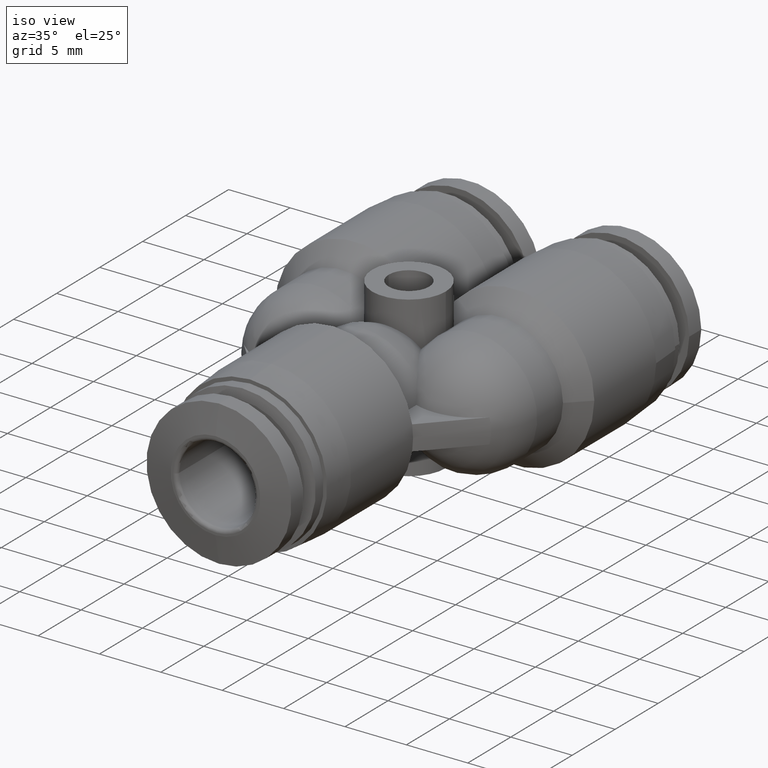
[diagram: clean part render]
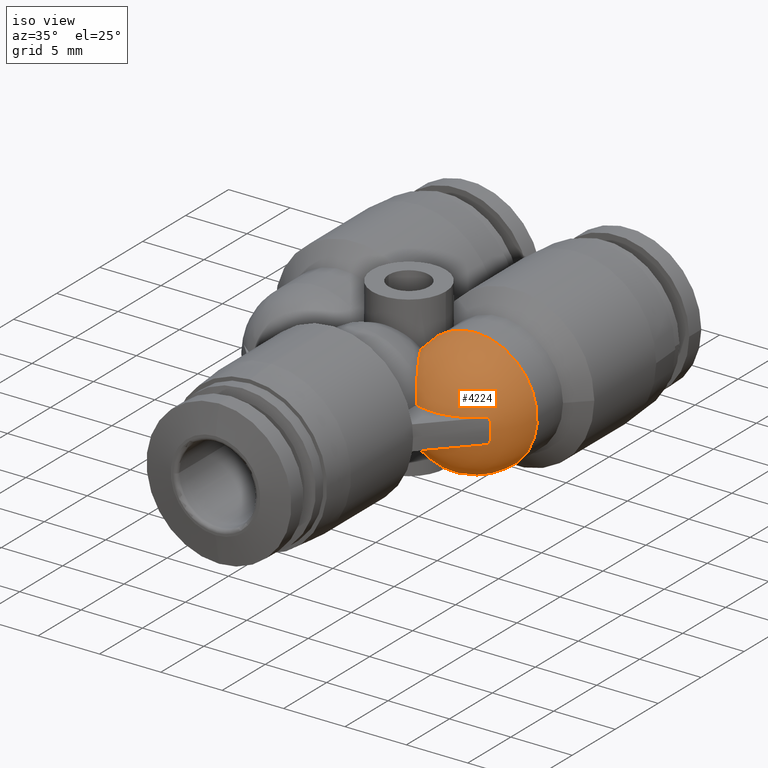
[diagram: same view with one face highlighted and labeled with its STEP entity id]
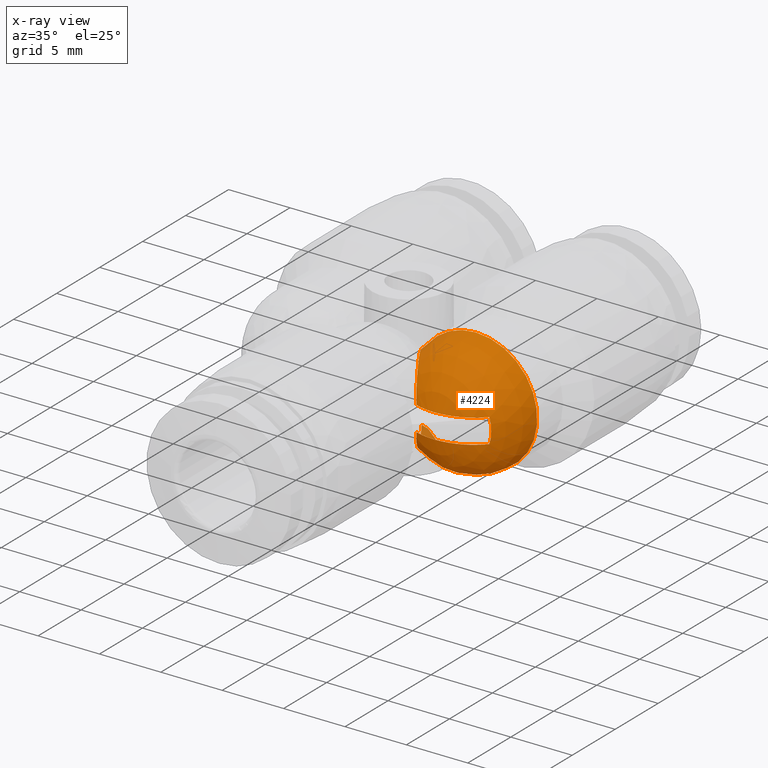
[diagram: x-ray of the same camera — body ghosted, the highlighted face saturated]
A machine part, iso view. The second image highlights one B-rep face of the part: STEP entity #4224.
The next image is the same camera in x-ray: the body ghosted, the highlighted face saturated — about 1% of this face is hidden behind the body in this view.
In plain terms, the highlighted spherical surface has radius 5 mm.
Its self-contained STEP definition (entity closure, byte-faithful):
#138 = B_SPLINE_CURVE_WITH_KNOTS ( 'NONE', 3,
 ( #1878, #4533, #1418, #2324 ),
 .UNSPECIFIED., .F., .F.,
 ( 4, 4 ),
 ( 6.640039522552162700E-012, 0.0005671401409244384000 ),
 .UNSPECIFIED. ) ;
#163 = CARTESIAN_POINT ( 'NONE',  ( 0.09257637847656685600, 0.5565752166759430100, -0.1089469649203462200 ) ) ;
#223 = CARTESIAN_POINT ( 'NONE',  ( 0.1472519663707816700, 0.4630511847516054500, 0.1245855146685866900 ) ) ;
#243 = EDGE_CURVE ( 'NONE', #4706, #4729, #2808, .T. ) ;
#245 = CARTESIAN_POINT ( 'NONE',  ( 0.09559180651172540000, 0.5514172476684338100, -0.1127909921439706900 ) ) ;
#276 = CARTESIAN_POINT ( 'NONE',  ( 0.3938228973749638400, 0.4360371049510830500, 0.03937007874015924200 ) ) ;
#296 = CARTESIAN_POINT ( 'NONE',  ( 0.3993319701483046800, 0.4360371542611297700, -5.582964880023018900E-018 ) ) ;
#484 = CIRCLE ( 'NONE', #2291, 0.1968503937007948200 ) ;
#606 = CARTESIAN_POINT ( 'NONE',  ( 0.1716838279831953400, 0.4212598425198296700, -0.09630545524130779100 ) ) ;
#622 = CARTESIAN_POINT ( 'NONE',  ( 0.2559055118111661600, 0.5708661417324755200, 0.1968503937007948200 ) ) ;
#662 = ORIENTED_EDGE ( 'NONE', *, *, #3062, .F. ) ;
#681 = CARTESIAN_POINT ( 'NONE',  ( 0.1296823272623577100, 0.4931045148054958300, 0.1296958778351818000 ) ) ;
#699 = CARTESIAN_POINT ( 'NONE',  ( 0.2559055118111661600, 0.5708661417324755200, -0.03937007874015820100 ) ) ;
#706 = EDGE_CURVE ( 'NONE', #4856, #4729, #3662, .T. ) ;
#729 = CARTESIAN_POINT ( 'NONE',  ( 0.3993319656034372000, 0.4360368798761134500, 0.01355875711738979300 ) ) ;
#743 = DIRECTION ( 'NONE',  ( 1.000000000000000000, -6.938893903906966100E-016, 0.0000000000000000000 ) ) ;
#896 = CARTESIAN_POINT ( 'NONE',  ( 0.1663527539163683600, 0.4303787850025674900, -0.1058091661241676300 ) ) ;
#1007 = DIRECTION ( 'NONE',  ( -0.0000000000000000000, 0.0000000000000000000, 1.000000000000000000 ) ) ;
#1088 = CARTESIAN_POINT ( 'NONE',  ( 0.1663527539163684500, 0.4303787850025675400, 0.1058091661241676400 ) ) ;
#1094 = CIRCLE ( 'NONE', #1379, 0.1928732080931733200 ) ;
#1120 = CARTESIAN_POINT ( 'NONE',  ( 0.1190560089530685300, 0.5112811119134949000, 0.1285340674648665900 ) ) ;
#1139 = DIRECTION ( 'NONE',  ( -1.000000000000000000, 0.0000000000000000000, 0.0000000000000000000 ) ) ;
#1170 = CARTESIAN_POINT ( 'NONE',  ( 0.2559055118111661600, 0.5708661417324755200, -4.739000847409359400E-032 ) ) ;
#1176 = EDGE_CURVE ( 'NONE', #4723, #4777, #1094, .T. ) ;
#1183 = CARTESIAN_POINT ( 'NONE',  ( 0.1928732080932837600, 0.3885833858607868300, 0.03937007874010163600 ) ) ;
#1379 = AXIS2_PLACEMENT_3D ( 'NONE', #3668, #1007, #4135 ) ;
#1400 = EDGE_CURVE ( 'NONE', #4706, #3212, #2287, .T. ) ;
#1418 = CARTESIAN_POINT ( 'NONE',  ( 0.09581629707265977600, 0.5606645978781912300, 0.1143405446046730500 ) ) ;
#1568 = ORIENTED_EDGE ( 'NONE', *, *, #5334, .T. ) ;
#1579 = CARTESIAN_POINT ( 'NONE',  ( 0.1086425977944975900, 0.5290935257373697900, 0.1239705782561892200 ) ) ;
#1626 = SPHERICAL_SURFACE ( 'NONE', #4203, 0.1968503937007948200 ) ;
#1637 = CARTESIAN_POINT ( 'NONE',  ( 0.1760733430999616400, 0.4137514613990382300, 0.08848026240722531300 ) ) ;
#1704 = DIRECTION ( 'NONE',  ( -6.938893903906966100E-016, -1.000000000000000000, 6.938893903906968100E-016 ) ) ;
#1715 = EDGE_CURVE ( 'NONE', #4780, #3197, #1774, .T. ) ;
#1739 = CIRCLE ( 'NONE', #1923, 0.1928732080931710700 ) ;
#1746 = AXIS2_PLACEMENT_3D ( 'NONE', #4579, #1904, #5040 ) ;
#1754 = CARTESIAN_POINT ( 'NONE',  ( 0.1190560089530685600, 0.5112811119134949000, -0.1285340674648664000 ) ) ;
#1774 = B_SPLINE_CURVE_WITH_KNOTS ( 'NONE', 3,
 ( #296, #5665, #2529, #3412 ),
 .UNSPECIFIED., .F., .F.,
 ( 4, 4 ),
 ( 0.0000000000000000000, 1.000000000000000000 ),
 .UNSPECIFIED. ) ;
#1814 = CARTESIAN_POINT ( 'NONE',  ( 0.09257637847656681500, 0.5565752166759430100, 0.1089469649203462400 ) ) ;
#1878 = CARTESIAN_POINT ( 'NONE',  ( 0.1022864649019111500, 0.5708661415384842500, 0.1230904786197818000 ) ) ;
#1904 = DIRECTION ( 'NONE',  ( 2.525689726806573300E-009, -1.000000000000000000, 3.469446953048826800E-016 ) ) ;
#1923 = AXIS2_PLACEMENT_3D ( 'NONE', #699, #3787, #1139 ) ;
#1951 = CARTESIAN_POINT ( 'NONE',  ( 0.1022864649019111500, 0.5708661415384842500, 0.1230904786197818000 ) ) ;
#1982 = ORIENTED_EDGE ( 'NONE', *, *, #706, .F. ) ;
#2019 = CARTESIAN_POINT ( 'NONE',  ( 0.09872948265587247500, 0.5460501700534439200, 0.1161006428139773800 ) ) ;
#2035 = FACE_OUTER_BOUND ( 'NONE', #3056, .T. ) ;
#2121 = CARTESIAN_POINT ( 'NONE',  ( 0.3938230066952848600, 0.4360372208301582800, -0.03937007907882612200 ) ) ;
#2200 = CARTESIAN_POINT ( 'NONE',  ( 0.1801998313415413600, 0.4072477773995517000, -0.07988603281599591900 ) ) ;
#2287 = B_SPLINE_CURVE_WITH_KNOTS ( 'NONE', 3,
 ( #3032, #4888, #2200, #5355, #2635, #5780 ),
 .UNSPECIFIED., .F., .F.,
 ( 4, 2, 4 ),
 ( 1.069355368659044600E-017, 0.0008795014551594330200, 0.001759002910318855200 ),
 .UNSPECIFIED. ) ;
#2291 = AXIS2_PLACEMENT_3D ( 'NONE', #4375, #1704, #4844 ) ;
#2324 = CARTESIAN_POINT ( 'NONE',  ( 0.09257637847656681500, 0.5565752166759430100, 0.1089469649203462400 ) ) ;
#2474 = CARTESIAN_POINT ( 'NONE',  ( 0.09257637847656681500, 0.5565752166759430100, 0.1089469649203462400 ) ) ;
#2529 = CARTESIAN_POINT ( 'NONE',  ( 0.3974216972241276800, 0.4360373280126550500, -0.02676386215532838100 ) ) ;
#2631 = EDGE_CURVE ( 'NONE', #5281, #4992, #138, .T. ) ;
#2635 = CARTESIAN_POINT ( 'NONE',  ( 0.1906190649064961600, 0.3917479620334189900, -0.05041307996973014300 ) ) ;
#2669 = EDGE_CURVE ( 'NONE', #4716, #5281, #3568, .T. ) ;
#2717 = ORIENTED_EDGE ( 'NONE', *, *, #5323, .F. ) ;
#2808 = B_SPLINE_CURVE_WITH_KNOTS ( 'NONE', 3,
 ( #4785, #896, #4924, #4727, #4719, #4708, #4687, #1754, #4664, #4621, #4601, #4559, #245, #4538 ),
 .UNSPECIFIED., .F., .F.,
 ( 4, 2, 2, 2, 2, 2, 4 ),
 ( 1.226634733346699500E-017, 0.001067358897917320400, 0.002134717795834628200, 0.002668397244793282300, 0.003202076693751936000, 0.003735756142710590100, 0.004269435591669244200 ),
 .UNSPECIFIED. ) ;
#2884 = CARTESIAN_POINT ( 'NONE',  ( 0.1603987516797021600, 0.4405632625126570900, 0.1133614872300359500 ) ) ;
#2939 = CARTESIAN_POINT ( 'NONE',  ( 0.3993319701483046800, 0.4360371542611297700, -5.582964880023018900E-018 ) ) ;
#2955 = CARTESIAN_POINT ( 'NONE',  ( 0.1906161031639835300, 0.3917521200034357900, 0.05042758948554646600 ) ) ;
#2983 = CARTESIAN_POINT ( 'NONE',  ( 0.09257637847656685600, 0.5565752166759430100, -0.1089469649203462200 ) ) ;
#2999 = CARTESIAN_POINT ( 'NONE',  ( 0.09581629711059232200, 0.5606645979260692600, -0.1143405446678204500 ) ) ;
#3032 = CARTESIAN_POINT ( 'NONE',  ( 0.1716838279831953400, 0.4212598425198296700, -0.09630545524130779100 ) ) ;
#3056 = EDGE_LOOP ( 'NONE', ( #4385, #3293, #1568, #4907, #5272, #1982, #5679, #5803, #3913, #2717, #662, #4103 ) ) ;
#3062 = EDGE_CURVE ( 'NONE', #4723, #4710, #5450, .T. ) ;
#3197 = VERTEX_POINT ( 'NONE', #2121 ) ;
#3212 = VERTEX_POINT ( 'NONE', #4328 ) ;
#3215 = B_SPLINE_CURVE_WITH_KNOTS ( 'NONE', 3,
 ( #4693, #1088, #2884, #223, #3331, #681, #3769, #1120, #4249, #1579, #4714, #2019, #5176, #2474 ),
 .UNSPECIFIED., .F., .F.,
 ( 4, 2, 2, 2, 2, 2, 4 ),
 ( 1.412628475557503000E-017, 0.001067358897917321900, 0.002134717795834629900, 0.002668397244793283600, 0.003202076693751937700, 0.003735756142710591800, 0.004269435591669245100 ),
 .UNSPECIFIED. ) ;
#3262 = CARTESIAN_POINT ( 'NONE',  ( 0.1716838279831954000, 0.4212598425198297300, 0.09630545524130773600 ) ) ;
#3293 = ORIENTED_EDGE ( 'NONE', *, *, #1715, .T. ) ;
#3331 = CARTESIAN_POINT ( 'NONE',  ( 0.1403647765715709500, 0.4748319041449947700, 0.1279775991353888600 ) ) ;
#3410 = DIRECTION ( 'NONE',  ( -6.938893903906966100E-016, -1.000000000000000000, -0.0000000000000000000 ) ) ;
#3412 = CARTESIAN_POINT ( 'NONE',  ( 0.3938230066952848600, 0.4360372208301582800, -0.03937007907882612200 ) ) ;
#3568 = CIRCLE ( 'NONE', #1746, 0.1968503937007946800 ) ;
#3662 = B_SPLINE_CURVE_WITH_KNOTS ( 'NONE', 3,
 ( #3881, #3794, #2999, #2983 ),
 .UNSPECIFIED., .F., .F.,
 ( 4, 4 ),
 ( 3.532037152466940600E-017, 0.0005671401409244325500 ),
 .UNSPECIFIED. ) ;
#3668 = CARTESIAN_POINT ( 'NONE',  ( 0.2559055118111661600, 0.5708661417324755200, 0.03937007874014709900 ) ) ;
#3769 = CARTESIAN_POINT ( 'NONE',  ( 0.1261044173790604200, 0.4992246238164005900, 0.1296855331369248500 ) ) ;
#3787 = DIRECTION ( 'NONE',  ( 0.0000000000000000000, -0.0000000000000000000, -1.000000000000000000 ) ) ;
#3794 = CARTESIAN_POINT ( 'NONE',  ( 0.09909759142223700800, 0.5653428506527743400, -0.1191107093537943100 ) ) ;
#3827 = CARTESIAN_POINT ( 'NONE',  ( 0.3993319701483046800, 0.4360371542611297700, -5.582964880023018900E-018 ) ) ;
#3881 = CARTESIAN_POINT ( 'NONE',  ( 0.1022864650139158600, 0.5708661417324820700, -0.1230904787595655200 ) ) ;
#3913 = ORIENTED_EDGE ( 'NONE', *, *, #2631, .T. ) ;
#3926 = CARTESIAN_POINT ( 'NONE',  ( 0.1022864650139158600, 0.5708661417324820700, -0.1230904787595655200 ) ) ;
#4103 = ORIENTED_EDGE ( 'NONE', *, *, #1176, .T. ) ;
#4135 = DIRECTION ( 'NONE',  ( -1.000000000000000000, 0.0000000000000000000, 0.0000000000000000000 ) ) ;
#4203 = AXIS2_PLACEMENT_3D ( 'NONE', #1170, #3410, #743 ) ;
#4221 = EDGE_CURVE ( 'NONE', #4777, #4780, #4530, .T. ) ;
#4224 = ADVANCED_FACE ( 'NONE', ( #2035 ), #1626, .T. ) ;
#4249 = CARTESIAN_POINT ( 'NONE',  ( 0.1155633151416633300, 0.5172554565908992200, 0.1273969538001540100 ) ) ;
#4309 = CARTESIAN_POINT ( 'NONE',  ( 0.1802867160491161400, 0.4071125140924000100, 0.07969042975348647500 ) ) ;
#4328 = CARTESIAN_POINT ( 'NONE',  ( 0.1928732080932786300, 0.3885833858608086500, -0.03937007874013190300 ) ) ;
#4375 = CARTESIAN_POINT ( 'NONE',  ( 0.2559055118111661600, 0.5708661417324755200, -4.739000847409359400E-032 ) ) ;
#4385 = ORIENTED_EDGE ( 'NONE', *, *, #4221, .T. ) ;
#4530 = B_SPLINE_CURVE_WITH_KNOTS ( 'NONE', 3,
 ( #276, #5643, #729, #3827 ),
 .UNSPECIFIED., .F., .F.,
 ( 4, 4 ),
 ( 0.0000000000000000000, 1.000000000000000000 ),
 .UNSPECIFIED. ) ;
#4533 = CARTESIAN_POINT ( 'NONE',  ( 0.09909759145957197600, 0.5653428507174403900, 0.1191107094003890500 ) ) ;
#4538 = CARTESIAN_POINT ( 'NONE',  ( 0.09257637847656685600, 0.5565752166759430100, -0.1089469649203462200 ) ) ;
#4559 = CARTESIAN_POINT ( 'NONE',  ( 0.09872948265587253000, 0.5460501700534437000, -0.1161006428139773300 ) ) ;
#4579 = CARTESIAN_POINT ( 'NONE',  ( 0.2559055118111660500, 0.5708661417324755200, 4.268512403852904200E-018 ) ) ;
#4601 = CARTESIAN_POINT ( 'NONE',  ( 0.1052417005431736000, 0.5349108499830576000, -0.1216845463591656200 ) ) ;
#4621 = CARTESIAN_POINT ( 'NONE',  ( 0.1086425977944976000, 0.5290935257373697900, -0.1239705782561892200 ) ) ;
#4649 = CARTESIAN_POINT ( 'NONE',  ( 0.1928732080932837600, 0.3885833858607868300, 0.03937007874010163600 ) ) ;
#4664 = CARTESIAN_POINT ( 'NONE',  ( 0.1155633151416633200, 0.5172554565908992200, -0.1273969538001540100 ) ) ;
#4687 = CARTESIAN_POINT ( 'NONE',  ( 0.1261044173790604500, 0.4992246238164006500, -0.1296855331369247400 ) ) ;
#4693 = CARTESIAN_POINT ( 'NONE',  ( 0.1716838279831954000, 0.4212598425198297300, 0.09630545524130773600 ) ) ;
#4706 = VERTEX_POINT ( 'NONE', #606 ) ;
#4708 = CARTESIAN_POINT ( 'NONE',  ( 0.1296823272623576800, 0.4931045148054957700, -0.1296958778351818800 ) ) ;
#4710 = VERTEX_POINT ( 'NONE', #3262 ) ;
#4714 = CARTESIAN_POINT ( 'NONE',  ( 0.1052417005431736100, 0.5349108499830576000, 0.1216845463591656600 ) ) ;
#4716 = VERTEX_POINT ( 'NONE', #622 ) ;
#4719 = CARTESIAN_POINT ( 'NONE',  ( 0.1403647765715709500, 0.4748319041449948200, -0.1279775991353889200 ) ) ;
#4723 = VERTEX_POINT ( 'NONE', #4649 ) ;
#4727 = CARTESIAN_POINT ( 'NONE',  ( 0.1472519663707817200, 0.4630511847516055600, -0.1245855146685866700 ) ) ;
#4729 = VERTEX_POINT ( 'NONE', #163 ) ;
#4777 = VERTEX_POINT ( 'NONE', #5640 ) ;
#4780 = VERTEX_POINT ( 'NONE', #2939 ) ;
#4781 = CARTESIAN_POINT ( 'NONE',  ( 0.1716838279831954000, 0.4212598425198297300, 0.09630545524130773600 ) ) ;
#4785 = CARTESIAN_POINT ( 'NONE',  ( 0.1716838279831953400, 0.4212598425198296700, -0.09630545524130779100 ) ) ;
#4844 = DIRECTION ( 'NONE',  ( 0.0000000000000000000, -6.938893903906967100E-016, -1.000000000000000000 ) ) ;
#4856 = VERTEX_POINT ( 'NONE', #3926 ) ;
#4888 = CARTESIAN_POINT ( 'NONE',  ( 0.1760679232243108100, 0.4137607322389672000, -0.08848992442477758600 ) ) ;
#4907 = ORIENTED_EDGE ( 'NONE', *, *, #1400, .F. ) ;
#4924 = CARTESIAN_POINT ( 'NONE',  ( 0.1603987516797022500, 0.4405632625126572100, -0.1133614872300359500 ) ) ;
#4992 = VERTEX_POINT ( 'NONE', #1814 ) ;
#5040 = DIRECTION ( 'NONE',  ( 1.000000000000000000, 2.525689726806575000E-009, 0.0000000000000000000 ) ) ;
#5176 = CARTESIAN_POINT ( 'NONE',  ( 0.09559180651172541300, 0.5514172476684335900, 0.1127909921439708800 ) ) ;
#5272 = ORIENTED_EDGE ( 'NONE', *, *, #243, .T. ) ;
#5281 = VERTEX_POINT ( 'NONE', #1951 ) ;
#5323 = EDGE_CURVE ( 'NONE', #4710, #4992, #3215, .T. ) ;
#5334 = EDGE_CURVE ( 'NONE', #3197, #3212, #1739, .T. ) ;
#5355 = CARTESIAN_POINT ( 'NONE',  ( 0.1874804755961901000, 0.3962314283001706100, -0.06086730423490677900 ) ) ;
#5450 = B_SPLINE_CURVE_WITH_KNOTS ( 'NONE', 3,
 ( #1183, #2955, #5654, #4309, #1637, #4781 ),
 .UNSPECIFIED., .F., .F.,
 ( 4, 2, 4 ),
 ( 2.619476426755182700E-016, 0.0008786095193444648200, 0.001757219038688668600 ),
 .UNSPECIFIED. ) ;
#5640 = CARTESIAN_POINT ( 'NONE',  ( 0.3938228973749638400, 0.4360371049510830500, 0.03937007874015924200 ) ) ;
#5643 = CARTESIAN_POINT ( 'NONE',  ( 0.3974214848483246200, 0.4360371049510836100, 0.02676386122853214400 ) ) ;
#5654 = CARTESIAN_POINT ( 'NONE',  ( 0.1875499473456983000, 0.3961301911956899800, 0.06065378659816544900 ) ) ;
#5665 = CARTESIAN_POINT ( 'NONE',  ( 0.3993321771869963200, 0.4360371049513445700, -0.01355875746415568000 ) ) ;
#5679 = ORIENTED_EDGE ( 'NONE', *, *, #5690, .T. ) ;
#5690 = EDGE_CURVE ( 'NONE', #4856, #4716, #484, .T. ) ;
#5780 = CARTESIAN_POINT ( 'NONE',  ( 0.1928732080932786300, 0.3885833858608086500, -0.03937007874013190300 ) ) ;
#5803 = ORIENTED_EDGE ( 'NONE', *, *, #2669, .T. ) ;